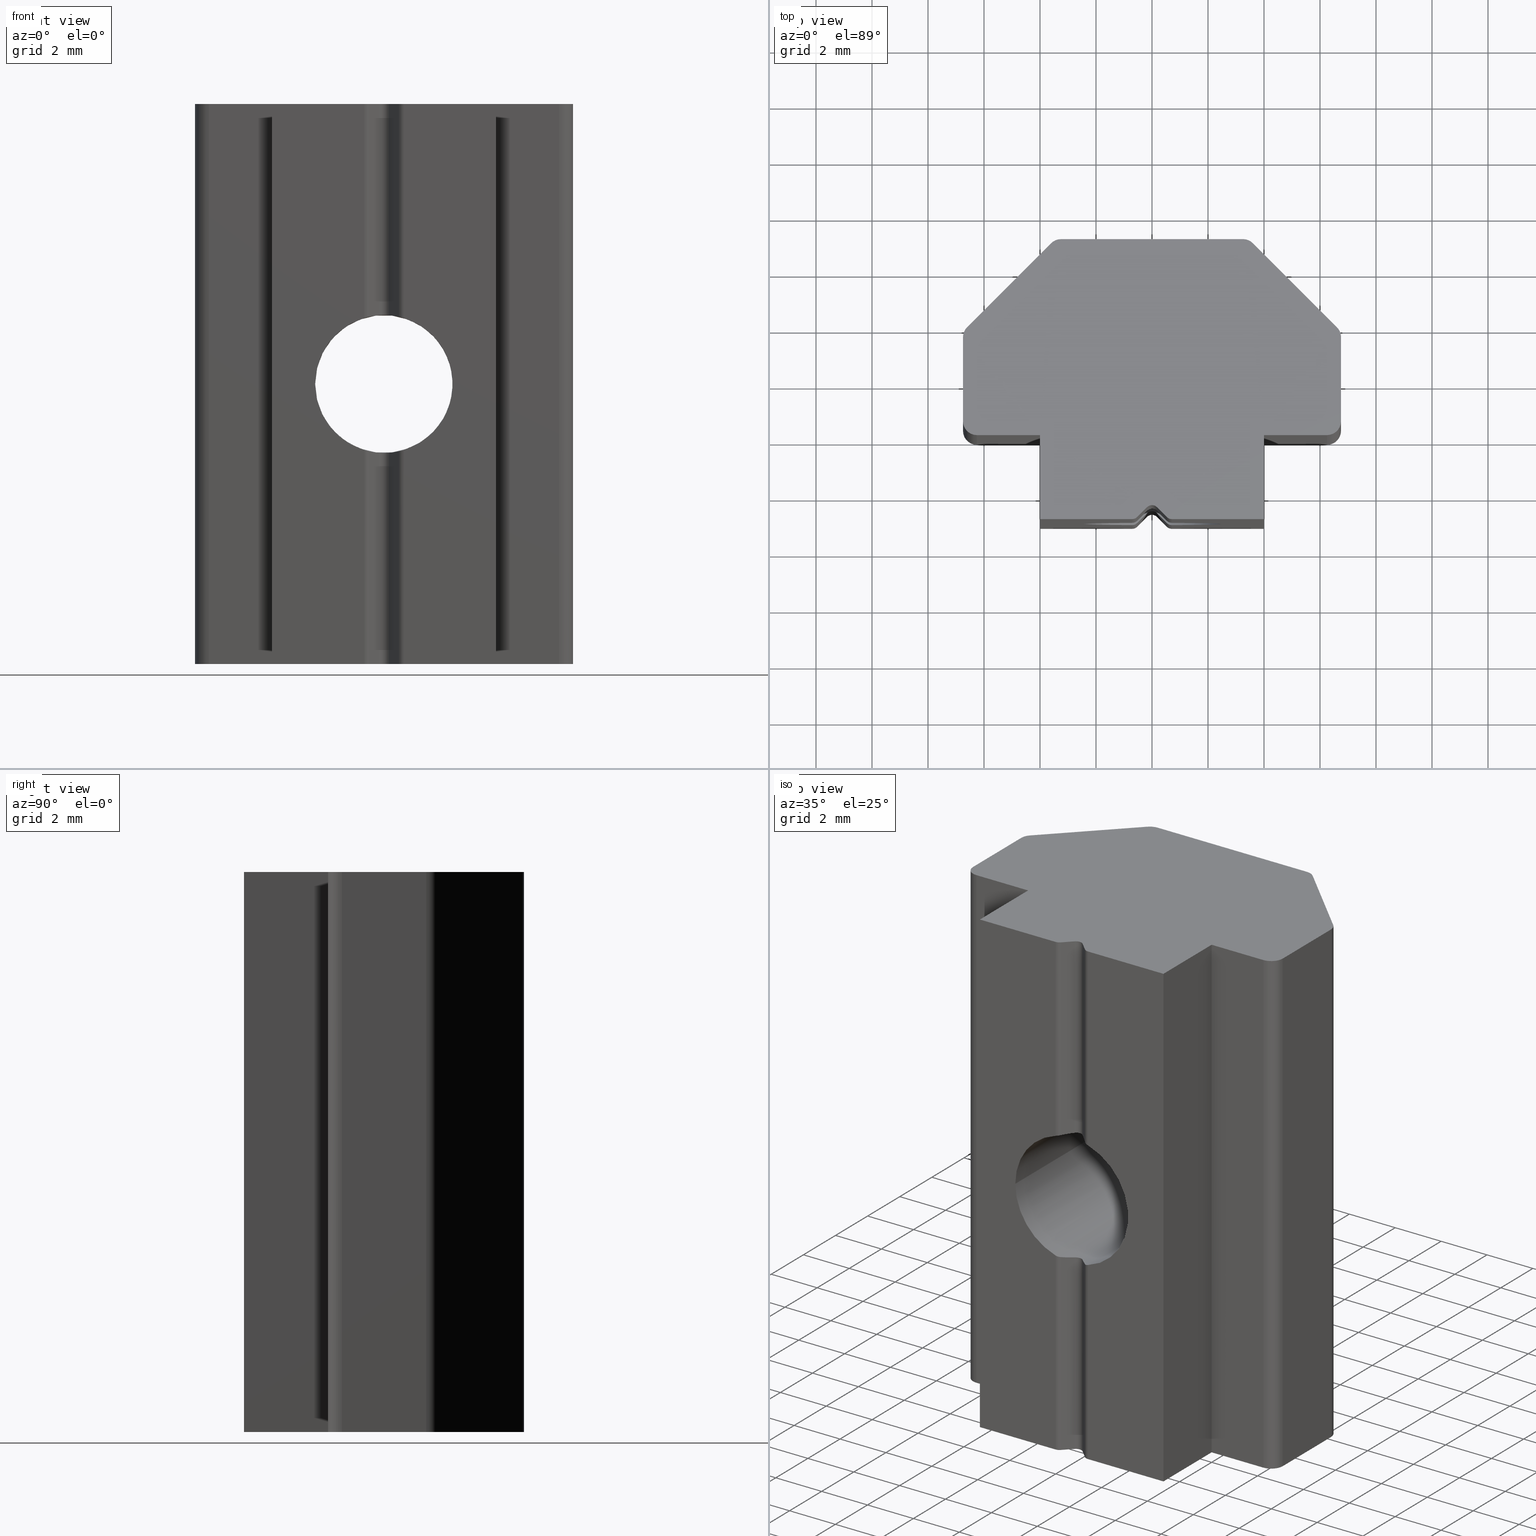
[diagram: canonical four-view strip — front | top / right | iso, engineering-drawing reading convention]
A machine part, canonical four-view strip (front | top / right | iso — engineering-drawing reading convention). The complete STEP part file that produces these views, byte-faithful:
ISO-10303-21;
HEADER;
/* Generated by software containing ST-Developer
 * from STEP Tools, Inc. (www.steptools.com) 
 */

FILE_DESCRIPTION(
/* description */ ('CURSORE M6 13.5x20 CAVA8 '),
/* implementation_level */ '2;1');

FILE_NAME(
/* name */ 
'Q:\\Catalogo\\2_Accessori Dierre\\Per Download Web e catalogo cartace
o\\CATALOGO ELEMENTI ASSEMBLAGGIO\\PAGINA 13\\DDDCU0000098.stp',
/* time_stamp */ '2019-10-28T18:36:26+01:00',
/* author */ ('fzagni'),
/* organization */ (''),
/* preprocessor_version */ 'ST-DEVELOPER v17.2',
/* originating_system */ 'Autodesk Inventor 2019',
/* authorisation */ '');

FILE_SCHEMA (('AUTOMOTIVE_DESIGN { 1 0 10303 214 3 1 1 }'));
ENDSEC;

DATA;
#10=MECHANICAL_DESIGN_GEOMETRIC_PRESENTATION_REPRESENTATION('',(#13),#1070);
#11=SHAPE_REPRESENTATION_RELATIONSHIP('SRR','None',#1077,#12);
#12=ADVANCED_BREP_SHAPE_REPRESENTATION('',(#14),#1069);
#13=STYLED_ITEM('',(#1086),#14);
#14=MANIFOLD_SOLID_BREP('Solido1',#603);
#15=FACE_BOUND('',#86,.T.);
#16=PLANE('',#635);
#17=PLANE('',#636);
#18=PLANE('',#645);
#19=PLANE('',#646);
#20=PLANE('',#649);
#21=PLANE('',#650);
#22=PLANE('',#651);
#23=PLANE('',#658);
#24=PLANE('',#659);
#25=PLANE('',#660);
#26=PLANE('',#663);
#27=PLANE('',#666);
#28=PLANE('',#669);
#29=PLANE('',#672);
#30=PLANE('',#675);
#31=PLANE('',#678);
#32=PLANE('',#679);
#33=FACE_OUTER_BOUND('',#63,.T.);
#34=FACE_OUTER_BOUND('',#64,.T.);
#35=FACE_OUTER_BOUND('',#65,.T.);
#36=FACE_OUTER_BOUND('',#66,.T.);
#37=FACE_OUTER_BOUND('',#67,.T.);
#38=FACE_OUTER_BOUND('',#68,.T.);
#39=FACE_OUTER_BOUND('',#69,.T.);
#40=FACE_OUTER_BOUND('',#70,.T.);
#41=FACE_OUTER_BOUND('',#71,.T.);
#42=FACE_OUTER_BOUND('',#72,.T.);
#43=FACE_OUTER_BOUND('',#73,.T.);
#44=FACE_OUTER_BOUND('',#74,.T.);
#45=FACE_OUTER_BOUND('',#75,.T.);
#46=FACE_OUTER_BOUND('',#76,.T.);
#47=FACE_OUTER_BOUND('',#77,.T.);
#48=FACE_OUTER_BOUND('',#78,.T.);
#49=FACE_OUTER_BOUND('',#79,.T.);
#50=FACE_OUTER_BOUND('',#80,.T.);
#51=FACE_OUTER_BOUND('',#81,.T.);
#52=FACE_OUTER_BOUND('',#82,.T.);
#53=FACE_OUTER_BOUND('',#83,.T.);
#54=FACE_OUTER_BOUND('',#84,.T.);
#55=FACE_OUTER_BOUND('',#85,.T.);
#56=FACE_OUTER_BOUND('',#87,.T.);
#57=FACE_OUTER_BOUND('',#88,.T.);
#58=FACE_OUTER_BOUND('',#89,.T.);
#59=FACE_OUTER_BOUND('',#90,.T.);
#60=FACE_OUTER_BOUND('',#91,.T.);
#61=FACE_OUTER_BOUND('',#92,.T.);
#62=FACE_OUTER_BOUND('',#93,.T.);
#63=EDGE_LOOP('',(#384,#385,#386,#387,#388,#389,#390,#391,#392,#393,#394,
#395,#396,#397,#398,#399,#400));
#64=EDGE_LOOP('',(#401,#402,#403,#404));
#65=EDGE_LOOP('',(#405,#406,#407,#408,#409,#410));
#66=EDGE_LOOP('',(#411,#412,#413,#414));
#67=EDGE_LOOP('',(#415,#416,#417,#418));
#68=EDGE_LOOP('',(#419,#420,#421,#422));
#69=EDGE_LOOP('',(#423,#424,#425,#426));
#70=EDGE_LOOP('',(#427,#428,#429,#430));
#71=EDGE_LOOP('',(#431,#432,#433,#434));
#72=EDGE_LOOP('',(#435,#436,#437,#438));
#73=EDGE_LOOP('',(#439,#440,#441,#442));
#74=EDGE_LOOP('',(#443,#444,#445,#446));
#75=EDGE_LOOP('',(#447,#448,#449,#450,#451,#452,#453));
#76=EDGE_LOOP('',(#454,#455,#456,#457,#458,#459,#460,#461,#462,#463,#464,
#465,#466,#467,#468,#469,#470,#471,#472,#473,#474,#475));
#77=EDGE_LOOP('',(#476,#477,#478,#479));
#78=EDGE_LOOP('',(#480,#481,#482,#483));
#79=EDGE_LOOP('',(#484,#485,#486,#487));
#80=EDGE_LOOP('',(#488,#489,#490,#491));
#81=EDGE_LOOP('',(#492,#493,#494,#495));
#82=EDGE_LOOP('',(#496,#497,#498,#499));
#83=EDGE_LOOP('',(#500,#501,#502,#503));
#84=EDGE_LOOP('',(#504,#505,#506,#507));
#85=EDGE_LOOP('',(#508,#509,#510,#511));
#86=EDGE_LOOP('',(#512,#513));
#87=EDGE_LOOP('',(#514,#515,#516,#517));
#88=EDGE_LOOP('',(#518,#519,#520,#521));
#89=EDGE_LOOP('',(#522,#523,#524,#525));
#90=EDGE_LOOP('',(#526,#527,#528,#529));
#91=EDGE_LOOP('',(#530,#531,#532,#533));
#92=EDGE_LOOP('',(#534,#535,#536,#537));
#93=EDGE_LOOP('',(#538,#539,#540,#541,#542,#543,#544,#545,#546,#547,#548,
#549,#550,#551,#552,#553,#554,#555,#556,#557,#558,#559));
#94=ELLIPSE('',#627,3.47684404309426,2.4585);
#95=ELLIPSE('',#628,3.47684404309426,2.4585);
#96=ELLIPSE('',#630,3.47684404309426,2.4585);
#97=ELLIPSE('',#631,3.47684404309426,2.4585);
#98=B_SPLINE_CURVE_WITH_KNOTS('',3,(#862,#863,#864,#865,#866,#867),
 .UNSPECIFIED.,.F.,.F.,(4,2,4),(0.0189204678367977,0.0285275095447883,0.0382712235857992),
 .UNSPECIFIED.);
#99=B_SPLINE_CURVE_WITH_KNOTS('',3,(#871,#872,#873,#874,#875,#876,#877,
#878,#879,#880),.UNSPECIFIED.,.F.,.F.,(4,2,2,2,4),(0.0188483560750807,0.0282724998026584,
0.037696643530236,0.0471207872578136,0.0565449309853912),.UNSPECIFIED.);
#100=B_SPLINE_CURVE_WITH_KNOTS('',3,(#884,#885,#886,#887,#888,#889),
 .UNSPECIFIED.,.F.,.F.,(4,2,4),(0.0388214432074334,0.0485651572484443,0.0581721989564349),
 .UNSPECIFIED.);
#101=B_SPLINE_CURVE_WITH_KNOTS('',3,(#893,#894,#895,#896,#897,#898),
 .UNSPECIFIED.,.F.,.F.,(4,2,4),(0.0960131876847319,0.105620229392723,0.115363943433733),
 .UNSPECIFIED.);
#102=B_SPLINE_CURVE_WITH_KNOTS('',3,(#902,#903,#904,#905,#906,#907,#908,
#909,#910,#911),.UNSPECIFIED.,.F.,.F.,(4,2,2,2,4),(0.0942416431355526,0.10366578686313,
0.113089930590708,0.122514074318285,0.131938218045863),.UNSPECIFIED.);
#103=B_SPLINE_CURVE_WITH_KNOTS('',3,(#915,#916,#917,#918,#919,#920),
 .UNSPECIFIED.,.F.,.F.,(4,2,4),(0.115915169619862,0.125658883660873,0.135265925368863),
 .UNSPECIFIED.);
#104=LINE('',#858,#159);
#105=LINE('',#924,#160);
#106=LINE('',#927,#161);
#107=LINE('',#930,#162);
#108=LINE('',#932,#163);
#109=LINE('',#934,#164);
#110=LINE('',#936,#165);
#111=LINE('',#937,#166);
#112=LINE('',#940,#167);
#113=LINE('',#941,#168);
#114=LINE('',#945,#169);
#115=LINE('',#948,#170);
#116=LINE('',#951,#171);
#117=LINE('',#954,#172);
#118=LINE('',#959,#173);
#119=LINE('',#961,#174);
#120=LINE('',#963,#175);
#121=LINE('',#966,#176);
#122=LINE('',#969,#177);
#123=LINE('',#971,#178);
#124=LINE('',#974,#179);
#125=LINE('',#976,#180);
#126=LINE('',#977,#181);
#127=LINE('',#980,#182);
#128=LINE('',#982,#183);
#129=LINE('',#986,#184);
#130=LINE('',#990,#185);
#131=LINE('',#994,#186);
#132=LINE('',#998,#187);
#133=LINE('',#1002,#188);
#134=LINE('',#1006,#189);
#135=LINE('',#1007,#190);
#136=LINE('',#1010,#191);
#137=LINE('',#1011,#192);
#138=LINE('',#1014,#193);
#139=LINE('',#1015,#194);
#140=LINE('',#1018,#195);
#141=LINE('',#1019,#196);
#142=LINE('',#1023,#197);
#143=LINE('',#1026,#198);
#144=LINE('',#1027,#199);
#145=LINE('',#1031,#200);
#146=LINE('',#1034,#201);
#147=LINE('',#1035,#202);
#148=LINE('',#1039,#203);
#149=LINE('',#1042,#204);
#150=LINE('',#1043,#205);
#151=LINE('',#1047,#206);
#152=LINE('',#1050,#207);
#153=LINE('',#1051,#208);
#154=LINE('',#1055,#209);
#155=LINE('',#1058,#210);
#156=LINE('',#1059,#211);
#157=LINE('',#1063,#212);
#158=LINE('',#1065,#213);
#159=VECTOR('',#688,2.4585);
#160=VECTOR('',#705,10.);
#161=VECTOR('',#708,10.);
#162=VECTOR('',#711,10.);
#163=VECTOR('',#712,10.);
#164=VECTOR('',#713,10.);
#165=VECTOR('',#714,10.);
#166=VECTOR('',#715,10.);
#167=VECTOR('',#718,10.);
#168=VECTOR('',#719,10.);
#169=VECTOR('',#724,10.);
#170=VECTOR('',#727,10.);
#171=VECTOR('',#730,10.);
#172=VECTOR('',#733,10.);
#173=VECTOR('',#740,10.);
#174=VECTOR('',#743,10.);
#175=VECTOR('',#746,10.);
#176=VECTOR('',#749,10.);
#177=VECTOR('',#752,10.);
#178=VECTOR('',#755,10.);
#179=VECTOR('',#758,10.);
#180=VECTOR('',#759,10.);
#181=VECTOR('',#760,10.);
#182=VECTOR('',#763,10.);
#183=VECTOR('',#764,10.);
#184=VECTOR('',#767,10.);
#185=VECTOR('',#770,10.);
#186=VECTOR('',#773,10.);
#187=VECTOR('',#776,10.);
#188=VECTOR('',#779,10.);
#189=VECTOR('',#782,10.);
#190=VECTOR('',#783,10.);
#191=VECTOR('',#786,10.);
#192=VECTOR('',#787,10.);
#193=VECTOR('',#790,10.);
#194=VECTOR('',#791,10.);
#195=VECTOR('',#794,10.);
#196=VECTOR('',#795,10.);
#197=VECTOR('',#800,10.);
#198=VECTOR('',#803,10.);
#199=VECTOR('',#804,10.);
#200=VECTOR('',#809,10.);
#201=VECTOR('',#812,10.);
#202=VECTOR('',#813,10.);
#203=VECTOR('',#818,10.);
#204=VECTOR('',#821,10.);
#205=VECTOR('',#822,10.);
#206=VECTOR('',#827,10.);
#207=VECTOR('',#830,10.);
#208=VECTOR('',#831,10.);
#209=VECTOR('',#836,10.);
#210=VECTOR('',#839,10.);
#211=VECTOR('',#840,10.);
#212=VECTOR('',#845,10.);
#213=VECTOR('',#848,10.);
#214=CIRCLE('',#624,2.4585);
#215=CIRCLE('',#625,2.4585);
#216=CIRCLE('',#626,2.4585);
#217=CIRCLE('',#629,2.4585);
#218=CIRCLE('',#632,2.4585);
#219=CIRCLE('',#634,0.25);
#220=CIRCLE('',#638,0.25);
#221=CIRCLE('',#640,0.25);
#222=CIRCLE('',#642,0.249999999999999);
#223=CIRCLE('',#644,0.249999999999999);
#224=CIRCLE('',#648,0.25);
#225=CIRCLE('',#652,0.499999999999999);
#226=CIRCLE('',#653,0.500000000000005);
#227=CIRCLE('',#654,0.499999999999994);
#228=CIRCLE('',#655,0.5);
#229=CIRCLE('',#656,0.500000000000001);
#230=CIRCLE('',#657,0.499999999999999);
#231=CIRCLE('',#662,0.499999999999999);
#232=CIRCLE('',#665,0.500000000000005);
#233=CIRCLE('',#668,0.499999999999994);
#234=CIRCLE('',#671,0.5);
#235=CIRCLE('',#674,0.500000000000001);
#236=CIRCLE('',#677,0.499999999999999);
#237=VERTEX_POINT('',#853);
#238=VERTEX_POINT('',#854);
#239=VERTEX_POINT('',#857);
#240=VERTEX_POINT('',#859);
#241=VERTEX_POINT('',#861);
#242=VERTEX_POINT('',#868);
#243=VERTEX_POINT('',#870);
#244=VERTEX_POINT('',#881);
#245=VERTEX_POINT('',#883);
#246=VERTEX_POINT('',#890);
#247=VERTEX_POINT('',#892);
#248=VERTEX_POINT('',#899);
#249=VERTEX_POINT('',#901);
#250=VERTEX_POINT('',#912);
#251=VERTEX_POINT('',#914);
#252=VERTEX_POINT('',#923);
#253=VERTEX_POINT('',#925);
#254=VERTEX_POINT('',#929);
#255=VERTEX_POINT('',#931);
#256=VERTEX_POINT('',#933);
#257=VERTEX_POINT('',#935);
#258=VERTEX_POINT('',#939);
#259=VERTEX_POINT('',#943);
#260=VERTEX_POINT('',#947);
#261=VERTEX_POINT('',#949);
#262=VERTEX_POINT('',#953);
#263=VERTEX_POINT('',#957);
#264=VERTEX_POINT('',#965);
#265=VERTEX_POINT('',#967);
#266=VERTEX_POINT('',#973);
#267=VERTEX_POINT('',#975);
#268=VERTEX_POINT('',#979);
#269=VERTEX_POINT('',#981);
#270=VERTEX_POINT('',#983);
#271=VERTEX_POINT('',#985);
#272=VERTEX_POINT('',#987);
#273=VERTEX_POINT('',#989);
#274=VERTEX_POINT('',#991);
#275=VERTEX_POINT('',#993);
#276=VERTEX_POINT('',#995);
#277=VERTEX_POINT('',#997);
#278=VERTEX_POINT('',#999);
#279=VERTEX_POINT('',#1001);
#280=VERTEX_POINT('',#1003);
#281=VERTEX_POINT('',#1005);
#282=VERTEX_POINT('',#1009);
#283=VERTEX_POINT('',#1013);
#284=VERTEX_POINT('',#1017);
#285=VERTEX_POINT('',#1021);
#286=VERTEX_POINT('',#1025);
#287=VERTEX_POINT('',#1029);
#288=VERTEX_POINT('',#1033);
#289=VERTEX_POINT('',#1037);
#290=VERTEX_POINT('',#1041);
#291=VERTEX_POINT('',#1045);
#292=VERTEX_POINT('',#1049);
#293=VERTEX_POINT('',#1053);
#294=VERTEX_POINT('',#1057);
#295=VERTEX_POINT('',#1061);
#296=EDGE_CURVE('',#237,#238,#214,.T.);
#297=EDGE_CURVE('',#238,#237,#215,.T.);
#298=EDGE_CURVE('',#238,#239,#104,.T.);
#299=EDGE_CURVE('',#240,#239,#216,.T.);
#300=EDGE_CURVE('',#241,#240,#98,.T.);
#301=EDGE_CURVE('',#242,#241,#94,.T.);
#302=EDGE_CURVE('',#243,#242,#99,.T.);
#303=EDGE_CURVE('',#244,#243,#95,.T.);
#304=EDGE_CURVE('',#245,#244,#100,.T.);
#305=EDGE_CURVE('',#246,#245,#217,.T.);
#306=EDGE_CURVE('',#247,#246,#101,.T.);
#307=EDGE_CURVE('',#248,#247,#96,.T.);
#308=EDGE_CURVE('',#249,#248,#102,.T.);
#309=EDGE_CURVE('',#250,#249,#97,.T.);
#310=EDGE_CURVE('',#251,#250,#103,.T.);
#311=EDGE_CURVE('',#239,#251,#218,.T.);
#312=EDGE_CURVE('',#240,#252,#105,.T.);
#313=EDGE_CURVE('',#253,#252,#219,.T.);
#314=EDGE_CURVE('',#253,#241,#106,.T.);
#315=EDGE_CURVE('',#245,#254,#107,.T.);
#316=EDGE_CURVE('',#255,#254,#108,.T.);
#317=EDGE_CURVE('',#255,#256,#109,.T.);
#318=EDGE_CURVE('',#257,#256,#110,.T.);
#319=EDGE_CURVE('',#257,#246,#111,.T.);
#320=EDGE_CURVE('',#258,#253,#112,.T.);
#321=EDGE_CURVE('',#258,#242,#113,.T.);
#322=EDGE_CURVE('',#259,#258,#220,.T.);
#323=EDGE_CURVE('',#259,#243,#114,.T.);
#324=EDGE_CURVE('',#248,#260,#115,.T.);
#325=EDGE_CURVE('',#261,#260,#221,.T.);
#326=EDGE_CURVE('',#249,#261,#116,.T.);
#327=EDGE_CURVE('',#262,#244,#117,.T.);
#328=EDGE_CURVE('',#254,#262,#222,.T.);
#329=EDGE_CURVE('',#263,#257,#223,.T.);
#330=EDGE_CURVE('',#247,#263,#118,.T.);
#331=EDGE_CURVE('',#262,#259,#119,.T.);
#332=EDGE_CURVE('',#260,#263,#120,.T.);
#333=EDGE_CURVE('',#250,#264,#121,.T.);
#334=EDGE_CURVE('',#265,#264,#224,.T.);
#335=EDGE_CURVE('',#265,#251,#122,.T.);
#336=EDGE_CURVE('',#264,#261,#123,.T.);
#337=EDGE_CURVE('',#266,#265,#124,.T.);
#338=EDGE_CURVE('',#267,#266,#125,.T.);
#339=EDGE_CURVE('',#252,#267,#126,.T.);
#340=EDGE_CURVE('',#267,#268,#127,.T.);
#341=EDGE_CURVE('',#268,#269,#128,.T.);
#342=EDGE_CURVE('',#269,#270,#225,.T.);
#343=EDGE_CURVE('',#270,#271,#129,.T.);
#344=EDGE_CURVE('',#271,#272,#226,.T.);
#345=EDGE_CURVE('',#272,#273,#130,.T.);
#346=EDGE_CURVE('',#273,#274,#227,.T.);
#347=EDGE_CURVE('',#274,#275,#131,.T.);
#348=EDGE_CURVE('',#275,#276,#228,.T.);
#349=EDGE_CURVE('',#276,#277,#132,.T.);
#350=EDGE_CURVE('',#277,#278,#229,.T.);
#351=EDGE_CURVE('',#278,#279,#133,.T.);
#352=EDGE_CURVE('',#279,#280,#230,.T.);
#353=EDGE_CURVE('',#280,#281,#134,.T.);
#354=EDGE_CURVE('',#281,#255,#135,.T.);
#355=EDGE_CURVE('',#282,#281,#136,.T.);
#356=EDGE_CURVE('',#256,#282,#137,.T.);
#357=EDGE_CURVE('',#283,#266,#138,.T.);
#358=EDGE_CURVE('',#268,#283,#139,.T.);
#359=EDGE_CURVE('',#284,#283,#140,.T.);
#360=EDGE_CURVE('',#269,#284,#141,.T.);
#361=EDGE_CURVE('',#285,#284,#231,.T.);
#362=EDGE_CURVE('',#270,#285,#142,.T.);
#363=EDGE_CURVE('',#286,#285,#143,.T.);
#364=EDGE_CURVE('',#271,#286,#144,.T.);
#365=EDGE_CURVE('',#287,#286,#232,.T.);
#366=EDGE_CURVE('',#272,#287,#145,.T.);
#367=EDGE_CURVE('',#288,#287,#146,.T.);
#368=EDGE_CURVE('',#273,#288,#147,.T.);
#369=EDGE_CURVE('',#289,#288,#233,.T.);
#370=EDGE_CURVE('',#274,#289,#148,.T.);
#371=EDGE_CURVE('',#290,#289,#149,.T.);
#372=EDGE_CURVE('',#275,#290,#150,.T.);
#373=EDGE_CURVE('',#291,#290,#234,.T.);
#374=EDGE_CURVE('',#276,#291,#151,.T.);
#375=EDGE_CURVE('',#292,#291,#152,.T.);
#376=EDGE_CURVE('',#277,#292,#153,.T.);
#377=EDGE_CURVE('',#293,#292,#235,.T.);
#378=EDGE_CURVE('',#278,#293,#154,.T.);
#379=EDGE_CURVE('',#294,#293,#155,.T.);
#380=EDGE_CURVE('',#279,#294,#156,.T.);
#381=EDGE_CURVE('',#295,#294,#236,.T.);
#382=EDGE_CURVE('',#280,#295,#157,.T.);
#383=EDGE_CURVE('',#282,#295,#158,.T.);
#384=ORIENTED_EDGE('',*,*,#296,.F.);
#385=ORIENTED_EDGE('',*,*,#297,.F.);
#386=ORIENTED_EDGE('',*,*,#298,.T.);
#387=ORIENTED_EDGE('',*,*,#299,.F.);
#388=ORIENTED_EDGE('',*,*,#300,.F.);
#389=ORIENTED_EDGE('',*,*,#301,.F.);
#390=ORIENTED_EDGE('',*,*,#302,.F.);
#391=ORIENTED_EDGE('',*,*,#303,.F.);
#392=ORIENTED_EDGE('',*,*,#304,.F.);
#393=ORIENTED_EDGE('',*,*,#305,.F.);
#394=ORIENTED_EDGE('',*,*,#306,.F.);
#395=ORIENTED_EDGE('',*,*,#307,.F.);
#396=ORIENTED_EDGE('',*,*,#308,.F.);
#397=ORIENTED_EDGE('',*,*,#309,.F.);
#398=ORIENTED_EDGE('',*,*,#310,.F.);
#399=ORIENTED_EDGE('',*,*,#311,.F.);
#400=ORIENTED_EDGE('',*,*,#298,.F.);
#401=ORIENTED_EDGE('',*,*,#300,.T.);
#402=ORIENTED_EDGE('',*,*,#312,.T.);
#403=ORIENTED_EDGE('',*,*,#313,.F.);
#404=ORIENTED_EDGE('',*,*,#314,.T.);
#405=ORIENTED_EDGE('',*,*,#305,.T.);
#406=ORIENTED_EDGE('',*,*,#315,.T.);
#407=ORIENTED_EDGE('',*,*,#316,.F.);
#408=ORIENTED_EDGE('',*,*,#317,.T.);
#409=ORIENTED_EDGE('',*,*,#318,.F.);
#410=ORIENTED_EDGE('',*,*,#319,.T.);
#411=ORIENTED_EDGE('',*,*,#301,.T.);
#412=ORIENTED_EDGE('',*,*,#314,.F.);
#413=ORIENTED_EDGE('',*,*,#320,.F.);
#414=ORIENTED_EDGE('',*,*,#321,.T.);
#415=ORIENTED_EDGE('',*,*,#302,.T.);
#416=ORIENTED_EDGE('',*,*,#321,.F.);
#417=ORIENTED_EDGE('',*,*,#322,.F.);
#418=ORIENTED_EDGE('',*,*,#323,.T.);
#419=ORIENTED_EDGE('',*,*,#308,.T.);
#420=ORIENTED_EDGE('',*,*,#324,.T.);
#421=ORIENTED_EDGE('',*,*,#325,.F.);
#422=ORIENTED_EDGE('',*,*,#326,.F.);
#423=ORIENTED_EDGE('',*,*,#304,.T.);
#424=ORIENTED_EDGE('',*,*,#327,.F.);
#425=ORIENTED_EDGE('',*,*,#328,.F.);
#426=ORIENTED_EDGE('',*,*,#315,.F.);
#427=ORIENTED_EDGE('',*,*,#306,.T.);
#428=ORIENTED_EDGE('',*,*,#319,.F.);
#429=ORIENTED_EDGE('',*,*,#329,.F.);
#430=ORIENTED_EDGE('',*,*,#330,.F.);
#431=ORIENTED_EDGE('',*,*,#303,.T.);
#432=ORIENTED_EDGE('',*,*,#323,.F.);
#433=ORIENTED_EDGE('',*,*,#331,.F.);
#434=ORIENTED_EDGE('',*,*,#327,.T.);
#435=ORIENTED_EDGE('',*,*,#307,.T.);
#436=ORIENTED_EDGE('',*,*,#330,.T.);
#437=ORIENTED_EDGE('',*,*,#332,.F.);
#438=ORIENTED_EDGE('',*,*,#324,.F.);
#439=ORIENTED_EDGE('',*,*,#310,.T.);
#440=ORIENTED_EDGE('',*,*,#333,.T.);
#441=ORIENTED_EDGE('',*,*,#334,.F.);
#442=ORIENTED_EDGE('',*,*,#335,.T.);
#443=ORIENTED_EDGE('',*,*,#309,.T.);
#444=ORIENTED_EDGE('',*,*,#326,.T.);
#445=ORIENTED_EDGE('',*,*,#336,.F.);
#446=ORIENTED_EDGE('',*,*,#333,.F.);
#447=ORIENTED_EDGE('',*,*,#299,.T.);
#448=ORIENTED_EDGE('',*,*,#311,.T.);
#449=ORIENTED_EDGE('',*,*,#335,.F.);
#450=ORIENTED_EDGE('',*,*,#337,.F.);
#451=ORIENTED_EDGE('',*,*,#338,.F.);
#452=ORIENTED_EDGE('',*,*,#339,.F.);
#453=ORIENTED_EDGE('',*,*,#312,.F.);
#454=ORIENTED_EDGE('',*,*,#328,.T.);
#455=ORIENTED_EDGE('',*,*,#331,.T.);
#456=ORIENTED_EDGE('',*,*,#322,.T.);
#457=ORIENTED_EDGE('',*,*,#320,.T.);
#458=ORIENTED_EDGE('',*,*,#313,.T.);
#459=ORIENTED_EDGE('',*,*,#339,.T.);
#460=ORIENTED_EDGE('',*,*,#340,.T.);
#461=ORIENTED_EDGE('',*,*,#341,.T.);
#462=ORIENTED_EDGE('',*,*,#342,.T.);
#463=ORIENTED_EDGE('',*,*,#343,.T.);
#464=ORIENTED_EDGE('',*,*,#344,.T.);
#465=ORIENTED_EDGE('',*,*,#345,.T.);
#466=ORIENTED_EDGE('',*,*,#346,.T.);
#467=ORIENTED_EDGE('',*,*,#347,.T.);
#468=ORIENTED_EDGE('',*,*,#348,.T.);
#469=ORIENTED_EDGE('',*,*,#349,.T.);
#470=ORIENTED_EDGE('',*,*,#350,.T.);
#471=ORIENTED_EDGE('',*,*,#351,.T.);
#472=ORIENTED_EDGE('',*,*,#352,.T.);
#473=ORIENTED_EDGE('',*,*,#353,.T.);
#474=ORIENTED_EDGE('',*,*,#354,.T.);
#475=ORIENTED_EDGE('',*,*,#316,.T.);
#476=ORIENTED_EDGE('',*,*,#355,.F.);
#477=ORIENTED_EDGE('',*,*,#356,.F.);
#478=ORIENTED_EDGE('',*,*,#317,.F.);
#479=ORIENTED_EDGE('',*,*,#354,.F.);
#480=ORIENTED_EDGE('',*,*,#338,.T.);
#481=ORIENTED_EDGE('',*,*,#357,.F.);
#482=ORIENTED_EDGE('',*,*,#358,.F.);
#483=ORIENTED_EDGE('',*,*,#340,.F.);
#484=ORIENTED_EDGE('',*,*,#358,.T.);
#485=ORIENTED_EDGE('',*,*,#359,.F.);
#486=ORIENTED_EDGE('',*,*,#360,.F.);
#487=ORIENTED_EDGE('',*,*,#341,.F.);
#488=ORIENTED_EDGE('',*,*,#360,.T.);
#489=ORIENTED_EDGE('',*,*,#361,.F.);
#490=ORIENTED_EDGE('',*,*,#362,.F.);
#491=ORIENTED_EDGE('',*,*,#342,.F.);
#492=ORIENTED_EDGE('',*,*,#362,.T.);
#493=ORIENTED_EDGE('',*,*,#363,.F.);
#494=ORIENTED_EDGE('',*,*,#364,.F.);
#495=ORIENTED_EDGE('',*,*,#343,.F.);
#496=ORIENTED_EDGE('',*,*,#364,.T.);
#497=ORIENTED_EDGE('',*,*,#365,.F.);
#498=ORIENTED_EDGE('',*,*,#366,.F.);
#499=ORIENTED_EDGE('',*,*,#344,.F.);
#500=ORIENTED_EDGE('',*,*,#366,.T.);
#501=ORIENTED_EDGE('',*,*,#367,.F.);
#502=ORIENTED_EDGE('',*,*,#368,.F.);
#503=ORIENTED_EDGE('',*,*,#345,.F.);
#504=ORIENTED_EDGE('',*,*,#368,.T.);
#505=ORIENTED_EDGE('',*,*,#369,.F.);
#506=ORIENTED_EDGE('',*,*,#370,.F.);
#507=ORIENTED_EDGE('',*,*,#346,.F.);
#508=ORIENTED_EDGE('',*,*,#370,.T.);
#509=ORIENTED_EDGE('',*,*,#371,.F.);
#510=ORIENTED_EDGE('',*,*,#372,.F.);
#511=ORIENTED_EDGE('',*,*,#347,.F.);
#512=ORIENTED_EDGE('',*,*,#296,.T.);
#513=ORIENTED_EDGE('',*,*,#297,.T.);
#514=ORIENTED_EDGE('',*,*,#372,.T.);
#515=ORIENTED_EDGE('',*,*,#373,.F.);
#516=ORIENTED_EDGE('',*,*,#374,.F.);
#517=ORIENTED_EDGE('',*,*,#348,.F.);
#518=ORIENTED_EDGE('',*,*,#374,.T.);
#519=ORIENTED_EDGE('',*,*,#375,.F.);
#520=ORIENTED_EDGE('',*,*,#376,.F.);
#521=ORIENTED_EDGE('',*,*,#349,.F.);
#522=ORIENTED_EDGE('',*,*,#376,.T.);
#523=ORIENTED_EDGE('',*,*,#377,.F.);
#524=ORIENTED_EDGE('',*,*,#378,.F.);
#525=ORIENTED_EDGE('',*,*,#350,.F.);
#526=ORIENTED_EDGE('',*,*,#378,.T.);
#527=ORIENTED_EDGE('',*,*,#379,.F.);
#528=ORIENTED_EDGE('',*,*,#380,.F.);
#529=ORIENTED_EDGE('',*,*,#351,.F.);
#530=ORIENTED_EDGE('',*,*,#380,.T.);
#531=ORIENTED_EDGE('',*,*,#381,.F.);
#532=ORIENTED_EDGE('',*,*,#382,.F.);
#533=ORIENTED_EDGE('',*,*,#352,.F.);
#534=ORIENTED_EDGE('',*,*,#382,.T.);
#535=ORIENTED_EDGE('',*,*,#383,.F.);
#536=ORIENTED_EDGE('',*,*,#355,.T.);
#537=ORIENTED_EDGE('',*,*,#353,.F.);
#538=ORIENTED_EDGE('',*,*,#329,.T.);
#539=ORIENTED_EDGE('',*,*,#318,.T.);
#540=ORIENTED_EDGE('',*,*,#356,.T.);
#541=ORIENTED_EDGE('',*,*,#383,.T.);
#542=ORIENTED_EDGE('',*,*,#381,.T.);
#543=ORIENTED_EDGE('',*,*,#379,.T.);
#544=ORIENTED_EDGE('',*,*,#377,.T.);
#545=ORIENTED_EDGE('',*,*,#375,.T.);
#546=ORIENTED_EDGE('',*,*,#373,.T.);
#547=ORIENTED_EDGE('',*,*,#371,.T.);
#548=ORIENTED_EDGE('',*,*,#369,.T.);
#549=ORIENTED_EDGE('',*,*,#367,.T.);
#550=ORIENTED_EDGE('',*,*,#365,.T.);
#551=ORIENTED_EDGE('',*,*,#363,.T.);
#552=ORIENTED_EDGE('',*,*,#361,.T.);
#553=ORIENTED_EDGE('',*,*,#359,.T.);
#554=ORIENTED_EDGE('',*,*,#357,.T.);
#555=ORIENTED_EDGE('',*,*,#337,.T.);
#556=ORIENTED_EDGE('',*,*,#334,.T.);
#557=ORIENTED_EDGE('',*,*,#336,.T.);
#558=ORIENTED_EDGE('',*,*,#325,.T.);
#559=ORIENTED_EDGE('',*,*,#332,.T.);
#560=CYLINDRICAL_SURFACE('',#623,2.4585);
#561=CYLINDRICAL_SURFACE('',#633,0.25);
#562=CYLINDRICAL_SURFACE('',#637,0.25);
#563=CYLINDRICAL_SURFACE('',#639,0.25);
#564=CYLINDRICAL_SURFACE('',#641,0.249999999999999);
#565=CYLINDRICAL_SURFACE('',#643,0.249999999999999);
#566=CYLINDRICAL_SURFACE('',#647,0.25);
#567=CYLINDRICAL_SURFACE('',#661,0.499999999999999);
#568=CYLINDRICAL_SURFACE('',#664,0.500000000000005);
#569=CYLINDRICAL_SURFACE('',#667,0.499999999999994);
#570=CYLINDRICAL_SURFACE('',#670,0.5);
#571=CYLINDRICAL_SURFACE('',#673,0.500000000000001);
#572=CYLINDRICAL_SURFACE('',#676,0.499999999999999);
#573=ADVANCED_FACE('',(#33),#560,.F.);
#574=ADVANCED_FACE('',(#34),#561,.T.);
#575=ADVANCED_FACE('',(#35),#16,.T.);
#576=ADVANCED_FACE('',(#36),#17,.F.);
#577=ADVANCED_FACE('',(#37),#562,.F.);
#578=ADVANCED_FACE('',(#38),#563,.F.);
#579=ADVANCED_FACE('',(#39),#564,.T.);
#580=ADVANCED_FACE('',(#40),#565,.T.);
#581=ADVANCED_FACE('',(#41),#18,.F.);
#582=ADVANCED_FACE('',(#42),#19,.F.);
#583=ADVANCED_FACE('',(#43),#566,.T.);
#584=ADVANCED_FACE('',(#44),#20,.F.);
#585=ADVANCED_FACE('',(#45),#21,.T.);
#586=ADVANCED_FACE('',(#46),#22,.F.);
#587=ADVANCED_FACE('',(#47),#23,.T.);
#588=ADVANCED_FACE('',(#48),#24,.T.);
#589=ADVANCED_FACE('',(#49),#25,.T.);
#590=ADVANCED_FACE('',(#50),#567,.T.);
#591=ADVANCED_FACE('',(#51),#26,.T.);
#592=ADVANCED_FACE('',(#52),#568,.T.);
#593=ADVANCED_FACE('',(#53),#27,.T.);
#594=ADVANCED_FACE('',(#54),#569,.T.);
#595=ADVANCED_FACE('',(#55,#15),#28,.T.);
#596=ADVANCED_FACE('',(#56),#570,.T.);
#597=ADVANCED_FACE('',(#57),#29,.T.);
#598=ADVANCED_FACE('',(#58),#571,.T.);
#599=ADVANCED_FACE('',(#59),#30,.T.);
#600=ADVANCED_FACE('',(#60),#572,.T.);
#601=ADVANCED_FACE('',(#61),#31,.T.);
#602=ADVANCED_FACE('',(#62),#32,.T.);
#603=CLOSED_SHELL('',(#573,#574,#575,#576,#577,#578,#579,#580,#581,#582,
#583,#584,#585,#586,#587,#588,#589,#590,#591,#592,#593,#594,#595,#596,#597,
#598,#599,#600,#601,#602));
#604=DERIVED_UNIT_ELEMENT(#606,1.);
#605=DERIVED_UNIT_ELEMENT(#1072,3.);
#606=(
MASS_UNIT()
NAMED_UNIT(*)
SI_UNIT($,.GRAM.)
);
#607=DERIVED_UNIT((#604,#605));
#608=MEASURE_REPRESENTATION_ITEM('density measure',
POSITIVE_RATIO_MEASURE(7.85),#607);
#609=PROPERTY_DEFINITION_REPRESENTATION(#614,#611);
#610=PROPERTY_DEFINITION_REPRESENTATION(#615,#612);
#611=REPRESENTATION('material name',(#613),#1069);
#612=REPRESENTATION('density',(#608),#1069);
#613=DESCRIPTIVE_REPRESENTATION_ITEM('Acciaio S235JR','Acciaio S235JR');
#614=PROPERTY_DEFINITION('material property','material name',#1079);
#615=PROPERTY_DEFINITION('material property','density of part',#1079);
#616=DATE_TIME_ROLE('creation_date');
#617=APPLIED_DATE_AND_TIME_ASSIGNMENT(#618,#616,(#1079));
#618=DATE_AND_TIME(#619,#620);
#619=CALENDAR_DATE(2019,28,10);
#620=LOCAL_TIME(17,1,7.,#621);
#621=COORDINATED_UNIVERSAL_TIME_OFFSET(0,0,.BEHIND.);
#622=AXIS2_PLACEMENT_3D('placement',#851,#680,#681);
#623=AXIS2_PLACEMENT_3D('',#852,#682,#683);
#624=AXIS2_PLACEMENT_3D('',#855,#684,#685);
#625=AXIS2_PLACEMENT_3D('',#856,#686,#687);
#626=AXIS2_PLACEMENT_3D('',#860,#689,#690);
#627=AXIS2_PLACEMENT_3D('',#869,#691,#692);
#628=AXIS2_PLACEMENT_3D('',#882,#693,#694);
#629=AXIS2_PLACEMENT_3D('',#891,#695,#696);
#630=AXIS2_PLACEMENT_3D('',#900,#697,#698);
#631=AXIS2_PLACEMENT_3D('',#913,#699,#700);
#632=AXIS2_PLACEMENT_3D('',#921,#701,#702);
#633=AXIS2_PLACEMENT_3D('',#922,#703,#704);
#634=AXIS2_PLACEMENT_3D('',#926,#706,#707);
#635=AXIS2_PLACEMENT_3D('',#928,#709,#710);
#636=AXIS2_PLACEMENT_3D('',#938,#716,#717);
#637=AXIS2_PLACEMENT_3D('',#942,#720,#721);
#638=AXIS2_PLACEMENT_3D('',#944,#722,#723);
#639=AXIS2_PLACEMENT_3D('',#946,#725,#726);
#640=AXIS2_PLACEMENT_3D('',#950,#728,#729);
#641=AXIS2_PLACEMENT_3D('',#952,#731,#732);
#642=AXIS2_PLACEMENT_3D('',#955,#734,#735);
#643=AXIS2_PLACEMENT_3D('',#956,#736,#737);
#644=AXIS2_PLACEMENT_3D('',#958,#738,#739);
#645=AXIS2_PLACEMENT_3D('',#960,#741,#742);
#646=AXIS2_PLACEMENT_3D('',#962,#744,#745);
#647=AXIS2_PLACEMENT_3D('',#964,#747,#748);
#648=AXIS2_PLACEMENT_3D('',#968,#750,#751);
#649=AXIS2_PLACEMENT_3D('',#970,#753,#754);
#650=AXIS2_PLACEMENT_3D('',#972,#756,#757);
#651=AXIS2_PLACEMENT_3D('',#978,#761,#762);
#652=AXIS2_PLACEMENT_3D('',#984,#765,#766);
#653=AXIS2_PLACEMENT_3D('',#988,#768,#769);
#654=AXIS2_PLACEMENT_3D('',#992,#771,#772);
#655=AXIS2_PLACEMENT_3D('',#996,#774,#775);
#656=AXIS2_PLACEMENT_3D('',#1000,#777,#778);
#657=AXIS2_PLACEMENT_3D('',#1004,#780,#781);
#658=AXIS2_PLACEMENT_3D('',#1008,#784,#785);
#659=AXIS2_PLACEMENT_3D('',#1012,#788,#789);
#660=AXIS2_PLACEMENT_3D('',#1016,#792,#793);
#661=AXIS2_PLACEMENT_3D('',#1020,#796,#797);
#662=AXIS2_PLACEMENT_3D('',#1022,#798,#799);
#663=AXIS2_PLACEMENT_3D('',#1024,#801,#802);
#664=AXIS2_PLACEMENT_3D('',#1028,#805,#806);
#665=AXIS2_PLACEMENT_3D('',#1030,#807,#808);
#666=AXIS2_PLACEMENT_3D('',#1032,#810,#811);
#667=AXIS2_PLACEMENT_3D('',#1036,#814,#815);
#668=AXIS2_PLACEMENT_3D('',#1038,#816,#817);
#669=AXIS2_PLACEMENT_3D('',#1040,#819,#820);
#670=AXIS2_PLACEMENT_3D('',#1044,#823,#824);
#671=AXIS2_PLACEMENT_3D('',#1046,#825,#826);
#672=AXIS2_PLACEMENT_3D('',#1048,#828,#829);
#673=AXIS2_PLACEMENT_3D('',#1052,#832,#833);
#674=AXIS2_PLACEMENT_3D('',#1054,#834,#835);
#675=AXIS2_PLACEMENT_3D('',#1056,#837,#838);
#676=AXIS2_PLACEMENT_3D('',#1060,#841,#842);
#677=AXIS2_PLACEMENT_3D('',#1062,#843,#844);
#678=AXIS2_PLACEMENT_3D('',#1064,#846,#847);
#679=AXIS2_PLACEMENT_3D('',#1066,#849,#850);
#680=DIRECTION('axis',(0.,0.,1.));
#681=DIRECTION('refdir',(1.,0.,0.));
#682=DIRECTION('center_axis',(0.,1.,0.));
#683=DIRECTION('ref_axis',(1.,0.,0.));
#684=DIRECTION('center_axis',(0.,-1.,0.));
#685=DIRECTION('ref_axis',(1.,0.,0.));
#686=DIRECTION('center_axis',(0.,-1.,0.));
#687=DIRECTION('ref_axis',(1.,0.,0.));
#688=DIRECTION('',(0.,-1.,0.));
#689=DIRECTION('center_axis',(0.,1.,0.));
#690=DIRECTION('ref_axis',(1.,0.,0.));
#691=DIRECTION('center_axis',(-0.707106781186548,0.707106781186547,0.));
#692=DIRECTION('ref_axis',(0.707106781186547,0.707106781186548,0.));
#693=DIRECTION('center_axis',(0.70710678118655,0.707106781186546,0.));
#694=DIRECTION('ref_axis',(0.707106781186545,-0.70710678118655,0.));
#695=DIRECTION('center_axis',(0.,1.,0.));
#696=DIRECTION('ref_axis',(1.,0.,0.));
#697=DIRECTION('center_axis',(0.70710678118655,0.707106781186546,0.));
#698=DIRECTION('ref_axis',(0.707106781186545,-0.70710678118655,0.));
#699=DIRECTION('center_axis',(-0.707106781186548,0.707106781186547,0.));
#700=DIRECTION('ref_axis',(0.707106781186547,0.707106781186548,0.));
#701=DIRECTION('center_axis',(0.,1.,0.));
#702=DIRECTION('ref_axis',(1.,0.,0.));
#703=DIRECTION('center_axis',(0.,0.,1.));
#704=DIRECTION('ref_axis',(5.55111512312579E-16,1.,0.));
#705=DIRECTION('',(0.,0.,-1.));
#706=DIRECTION('center_axis',(0.,0.,-1.));
#707=DIRECTION('ref_axis',(5.55111512312579E-16,1.,0.));
#708=DIRECTION('',(0.,0.,1.));
#709=DIRECTION('center_axis',(0.,-1.,0.));
#710=DIRECTION('ref_axis',(1.,0.,0.));
#711=DIRECTION('',(0.,0.,-1.));
#712=DIRECTION('',(-1.,0.,0.));
#713=DIRECTION('',(0.,0.,1.));
#714=DIRECTION('',(1.,0.,0.));
#715=DIRECTION('',(0.,0.,-1.));
#716=DIRECTION('center_axis',(-0.707106781186548,0.707106781186547,0.));
#717=DIRECTION('ref_axis',(-0.707106781186547,-0.707106781186548,0.));
#718=DIRECTION('',(-0.707106781186547,-0.707106781186548,0.));
#719=DIRECTION('',(0.,0.,1.));
#720=DIRECTION('center_axis',(0.,0.,1.));
#721=DIRECTION('ref_axis',(0.707106781186547,0.707106781186548,0.));
#722=DIRECTION('center_axis',(0.,0.,1.));
#723=DIRECTION('ref_axis',(0.707106781186547,0.707106781186548,0.));
#724=DIRECTION('',(0.,0.,1.));
#725=DIRECTION('center_axis',(0.,0.,1.));
#726=DIRECTION('ref_axis',(0.707106781186547,0.707106781186548,0.));
#727=DIRECTION('',(0.,0.,1.));
#728=DIRECTION('center_axis',(0.,0.,-1.));
#729=DIRECTION('ref_axis',(0.707106781186547,0.707106781186548,0.));
#730=DIRECTION('',(0.,0.,1.));
#731=DIRECTION('center_axis',(0.,0.,1.));
#732=DIRECTION('ref_axis',(0.707106781186548,0.707106781186547,0.));
#733=DIRECTION('',(0.,0.,1.));
#734=DIRECTION('center_axis',(0.,0.,-1.));
#735=DIRECTION('ref_axis',(0.707106781186548,0.707106781186547,0.));
#736=DIRECTION('center_axis',(0.,0.,1.));
#737=DIRECTION('ref_axis',(0.707106781186548,0.707106781186547,0.));
#738=DIRECTION('center_axis',(0.,0.,1.));
#739=DIRECTION('ref_axis',(0.707106781186548,0.707106781186547,0.));
#740=DIRECTION('',(0.,0.,1.));
#741=DIRECTION('center_axis',(0.70710678118655,0.707106781186546,0.));
#742=DIRECTION('ref_axis',(-0.707106781186545,0.707106781186549,0.));
#743=DIRECTION('',(-0.707106781186545,0.707106781186549,0.));
#744=DIRECTION('center_axis',(0.70710678118655,0.707106781186546,0.));
#745=DIRECTION('ref_axis',(-0.707106781186545,0.707106781186549,0.));
#746=DIRECTION('',(0.707106781186545,-0.707106781186549,0.));
#747=DIRECTION('center_axis',(0.,0.,1.));
#748=DIRECTION('ref_axis',(5.55111512312579E-16,1.,0.));
#749=DIRECTION('',(0.,0.,1.));
#750=DIRECTION('center_axis',(0.,0.,1.));
#751=DIRECTION('ref_axis',(5.55111512312579E-16,1.,0.));
#752=DIRECTION('',(0.,0.,-1.));
#753=DIRECTION('center_axis',(-0.707106781186548,0.707106781186547,0.));
#754=DIRECTION('ref_axis',(-0.707106781186547,-0.707106781186548,0.));
#755=DIRECTION('',(0.707106781186547,0.707106781186548,0.));
#756=DIRECTION('center_axis',(0.,-1.,0.));
#757=DIRECTION('ref_axis',(1.,0.,0.));
#758=DIRECTION('',(1.,0.,0.));
#759=DIRECTION('',(0.,0.,1.));
#760=DIRECTION('',(-1.,0.,0.));
#761=DIRECTION('center_axis',(0.,0.,1.));
#762=DIRECTION('ref_axis',(1.,0.,0.));
#763=DIRECTION('',(0.,1.,0.));
#764=DIRECTION('',(-1.,0.,0.));
#765=DIRECTION('center_axis',(0.,0.,-1.));
#766=DIRECTION('ref_axis',(-1.,0.,0.));
#767=DIRECTION('',(0.,1.,0.));
#768=DIRECTION('center_axis',(0.,0.,-1.));
#769=DIRECTION('ref_axis',(-0.707106781186549,0.707106781186546,0.));
#770=DIRECTION('',(0.707106781186547,0.707106781186548,0.));
#771=DIRECTION('center_axis',(0.,0.,-1.));
#772=DIRECTION('ref_axis',(0.,1.,0.));
#773=DIRECTION('',(1.,0.,0.));
#774=DIRECTION('center_axis',(0.,0.,-1.));
#775=DIRECTION('ref_axis',(0.707106781186548,0.707106781186547,0.));
#776=DIRECTION('',(0.707106781186547,-0.707106781186548,0.));
#777=DIRECTION('center_axis',(0.,0.,-1.));
#778=DIRECTION('ref_axis',(1.,-1.11022302462516E-15,0.));
#779=DIRECTION('',(3.70074341541719E-16,-1.,0.));
#780=DIRECTION('center_axis',(0.,0.,-1.));
#781=DIRECTION('ref_axis',(0.,-1.,0.));
#782=DIRECTION('',(-1.,0.,0.));
#783=DIRECTION('',(0.,-1.,0.));
#784=DIRECTION('center_axis',(1.,0.,0.));
#785=DIRECTION('ref_axis',(0.,1.,0.));
#786=DIRECTION('',(0.,0.,-1.));
#787=DIRECTION('',(0.,1.,0.));
#788=DIRECTION('center_axis',(-1.,0.,0.));
#789=DIRECTION('ref_axis',(0.,-1.,0.));
#790=DIRECTION('',(0.,-1.,0.));
#791=DIRECTION('',(0.,0.,1.));
#792=DIRECTION('center_axis',(0.,-1.,0.));
#793=DIRECTION('ref_axis',(1.,0.,0.));
#794=DIRECTION('',(1.,0.,0.));
#795=DIRECTION('',(0.,0.,1.));
#796=DIRECTION('center_axis',(0.,0.,1.));
#797=DIRECTION('ref_axis',(-1.,0.,0.));
#798=DIRECTION('center_axis',(0.,0.,1.));
#799=DIRECTION('ref_axis',(-1.,0.,0.));
#800=DIRECTION('',(0.,0.,1.));
#801=DIRECTION('center_axis',(-1.,0.,0.));
#802=DIRECTION('ref_axis',(0.,-1.,0.));
#803=DIRECTION('',(0.,-1.,0.));
#804=DIRECTION('',(0.,0.,1.));
#805=DIRECTION('center_axis',(0.,0.,1.));
#806=DIRECTION('ref_axis',(-0.707106781186549,0.707106781186546,0.));
#807=DIRECTION('center_axis',(0.,0.,1.));
#808=DIRECTION('ref_axis',(-0.707106781186549,0.707106781186546,0.));
#809=DIRECTION('',(0.,0.,1.));
#810=DIRECTION('center_axis',(-0.707106781186548,0.707106781186547,0.));
#811=DIRECTION('ref_axis',(-0.707106781186547,-0.707106781186548,0.));
#812=DIRECTION('',(-0.707106781186547,-0.707106781186548,0.));
#813=DIRECTION('',(0.,0.,1.));
#814=DIRECTION('center_axis',(0.,0.,1.));
#815=DIRECTION('ref_axis',(0.,1.,0.));
#816=DIRECTION('center_axis',(0.,0.,1.));
#817=DIRECTION('ref_axis',(0.,1.,0.));
#818=DIRECTION('',(0.,0.,1.));
#819=DIRECTION('center_axis',(0.,1.,0.));
#820=DIRECTION('ref_axis',(-1.,0.,0.));
#821=DIRECTION('',(-1.,0.,0.));
#822=DIRECTION('',(0.,0.,1.));
#823=DIRECTION('center_axis',(0.,0.,1.));
#824=DIRECTION('ref_axis',(0.707106781186548,0.707106781186547,0.));
#825=DIRECTION('center_axis',(0.,0.,1.));
#826=DIRECTION('ref_axis',(0.707106781186548,0.707106781186547,0.));
#827=DIRECTION('',(0.,0.,1.));
#828=DIRECTION('center_axis',(0.707106781186548,0.707106781186547,0.));
#829=DIRECTION('ref_axis',(-0.707106781186547,0.707106781186548,0.));
#830=DIRECTION('',(-0.707106781186547,0.707106781186548,0.));
#831=DIRECTION('',(0.,0.,1.));
#832=DIRECTION('center_axis',(0.,0.,1.));
#833=DIRECTION('ref_axis',(1.,-1.11022302462516E-15,0.));
#834=DIRECTION('center_axis',(0.,0.,1.));
#835=DIRECTION('ref_axis',(1.,-1.11022302462516E-15,0.));
#836=DIRECTION('',(0.,0.,1.));
#837=DIRECTION('center_axis',(1.,3.70074341541719E-16,0.));
#838=DIRECTION('ref_axis',(-3.70074341541719E-16,1.,0.));
#839=DIRECTION('',(-3.70074341541719E-16,1.,0.));
#840=DIRECTION('',(0.,0.,1.));
#841=DIRECTION('center_axis',(0.,0.,1.));
#842=DIRECTION('ref_axis',(0.,-1.,0.));
#843=DIRECTION('center_axis',(0.,0.,1.));
#844=DIRECTION('ref_axis',(0.,-1.,0.));
#845=DIRECTION('',(0.,0.,1.));
#846=DIRECTION('center_axis',(0.,-1.,0.));
#847=DIRECTION('ref_axis',(1.,0.,0.));
#848=DIRECTION('',(1.,0.,0.));
#849=DIRECTION('center_axis',(0.,0.,1.));
#850=DIRECTION('ref_axis',(1.,0.,0.));
#851=CARTESIAN_POINT('',(0.,0.,0.));
#852=CARTESIAN_POINT('Origin',(0.,2.,0.));
#853=CARTESIAN_POINT('',(2.4585,7.,0.));
#854=CARTESIAN_POINT('',(-2.4585,7.,3.01079415570377E-16));
#855=CARTESIAN_POINT('Origin',(0.,7.,0.));
#856=CARTESIAN_POINT('Origin',(0.,7.,0.));
#857=CARTESIAN_POINT('',(-2.4585,-3.,3.01079415570377E-16));
#858=CARTESIAN_POINT('',(-2.4585,2.,3.01079415570377E-16));
#859=CARTESIAN_POINT('',(-0.707106781186547,-3.,-2.3546172194223));
#860=CARTESIAN_POINT('Origin',(0.,-3.,0.));
#861=CARTESIAN_POINT('',(-0.53033008588991,-2.92677669529664,-2.40061913888897));
#862=CARTESIAN_POINT('Ctrl Pts',(-0.53033008588991,-2.92677669529664,-2.40061913888897));
#863=CARTESIAN_POINT('Ctrl Pts',(-0.552742798179244,-2.94918940758597,-2.395667859679));
#864=CARTESIAN_POINT('Ctrl Pts',(-0.580917754245045,-2.96833864666688,-2.38909056142037));
#865=CARTESIAN_POINT('Ctrl Pts',(-0.642515681378598,-2.99383357764456,-2.37327227968733));
#866=CARTESIAN_POINT('Ctrl Pts',(-0.676000121486064,-3.,-2.36395875053523));
#867=CARTESIAN_POINT('Ctrl Pts',(-0.707106781186547,-3.,-2.3546172194223));
#868=CARTESIAN_POINT('',(-0.176776695296637,-2.57322330470336,-2.45213626252702));
#869=CARTESIAN_POINT('Origin',(0.,-2.39644660940673,0.));
#870=CARTESIAN_POINT('',(0.176776695296638,-2.57322330470336,-2.45213626252702));
#871=CARTESIAN_POINT('Ctrl Pts',(0.176776695296637,-2.57322330470336,-2.45213626252702));
#872=CARTESIAN_POINT('Ctrl Pts',(0.154592580057102,-2.55103918946383,-2.45373553522653));
#873=CARTESIAN_POINT('Ctrl Pts',(0.126495220658897,-2.53180269429252,-2.45543701473341));
#874=CARTESIAN_POINT('Ctrl Pts',(0.0649067455557279,-2.5062825004358,-2.45783626153865));
#875=CARTESIAN_POINT('Ctrl Pts',(0.0314138124252587,-2.5,-2.4585));
#876=CARTESIAN_POINT('Ctrl Pts',(-0.0314138124252588,-2.5,-2.4585));
#877=CARTESIAN_POINT('Ctrl Pts',(-0.064906745555728,-2.5062825004358,-2.45783626153865));
#878=CARTESIAN_POINT('Ctrl Pts',(-0.126495220658897,-2.53180269429252,-2.45543701473341));
#879=CARTESIAN_POINT('Ctrl Pts',(-0.154592580057102,-2.55103918946383,-2.45373553522653));
#880=CARTESIAN_POINT('Ctrl Pts',(-0.176776695296637,-2.57322330470336,-2.45213626252702));
#881=CARTESIAN_POINT('',(0.530330085889911,-2.92677669529664,-2.40061913888897));
#882=CARTESIAN_POINT('Origin',(0.,-2.39644660940672,0.));
#883=CARTESIAN_POINT('',(0.707106781186547,-3.,-2.3546172194223));
#884=CARTESIAN_POINT('Ctrl Pts',(0.707106781186547,-3.,-2.3546172194223));
#885=CARTESIAN_POINT('Ctrl Pts',(0.676000121486064,-3.,-2.36395875053523));
#886=CARTESIAN_POINT('Ctrl Pts',(0.642515681378598,-2.99383357764456,-2.37327227968733));
#887=CARTESIAN_POINT('Ctrl Pts',(0.580917754245045,-2.96833864666688,-2.38909056142037));
#888=CARTESIAN_POINT('Ctrl Pts',(0.552742798179245,-2.94918940758597,-2.395667859679));
#889=CARTESIAN_POINT('Ctrl Pts',(0.530330085889911,-2.92677669529664,-2.40061913888897));
#890=CARTESIAN_POINT('',(0.707106781186547,-3.,2.3546172194223));
#891=CARTESIAN_POINT('Origin',(0.,-3.,0.));
#892=CARTESIAN_POINT('',(0.530330085889911,-2.92677669529664,2.40061913888897));
#893=CARTESIAN_POINT('Ctrl Pts',(0.530330085889911,-2.92677669529664,2.40061913888897));
#894=CARTESIAN_POINT('Ctrl Pts',(0.552742798179245,-2.94918940758597,2.395667859679));
#895=CARTESIAN_POINT('Ctrl Pts',(0.580917754245045,-2.96833864666688,2.38909056142037));
#896=CARTESIAN_POINT('Ctrl Pts',(0.642515681378598,-2.99383357764456,2.37327227968733));
#897=CARTESIAN_POINT('Ctrl Pts',(0.676000121486064,-3.,2.36395875053523));
#898=CARTESIAN_POINT('Ctrl Pts',(0.707106781186547,-3.,2.3546172194223));
#899=CARTESIAN_POINT('',(0.176776695296638,-2.57322330470336,2.45213626252702));
#900=CARTESIAN_POINT('Origin',(0.,-2.39644660940672,0.));
#901=CARTESIAN_POINT('',(-0.176776695296637,-2.57322330470336,2.45213626252702));
#902=CARTESIAN_POINT('Ctrl Pts',(-0.176776695296637,-2.57322330470336,2.45213626252702));
#903=CARTESIAN_POINT('Ctrl Pts',(-0.154592580057102,-2.55103918946383,2.45373553522653));
#904=CARTESIAN_POINT('Ctrl Pts',(-0.126495220658897,-2.53180269429252,2.45543701473341));
#905=CARTESIAN_POINT('Ctrl Pts',(-0.064906745555728,-2.5062825004358,2.45783626153865));
#906=CARTESIAN_POINT('Ctrl Pts',(-0.0314138124252588,-2.5,2.4585));
#907=CARTESIAN_POINT('Ctrl Pts',(0.0314138124252587,-2.5,2.4585));
#908=CARTESIAN_POINT('Ctrl Pts',(0.0649067455557279,-2.5062825004358,2.45783626153865));
#909=CARTESIAN_POINT('Ctrl Pts',(0.126495220658897,-2.53180269429252,2.45543701473341));
#910=CARTESIAN_POINT('Ctrl Pts',(0.154592580057102,-2.55103918946383,2.45373553522653));
#911=CARTESIAN_POINT('Ctrl Pts',(0.176776695296637,-2.57322330470336,2.45213626252702));
#912=CARTESIAN_POINT('',(-0.53033008588991,-2.92677669529664,2.40061913888897));
#913=CARTESIAN_POINT('Origin',(0.,-2.39644660940673,0.));
#914=CARTESIAN_POINT('',(-0.707106781186547,-3.,2.3546172194223));
#915=CARTESIAN_POINT('Ctrl Pts',(-0.707106781186547,-3.,2.3546172194223));
#916=CARTESIAN_POINT('Ctrl Pts',(-0.676000121486064,-3.,2.36395875053523));
#917=CARTESIAN_POINT('Ctrl Pts',(-0.642515681378598,-2.99383357764456,2.37327227968733));
#918=CARTESIAN_POINT('Ctrl Pts',(-0.580917754245045,-2.96833864666688,2.38909056142037));
#919=CARTESIAN_POINT('Ctrl Pts',(-0.552742798179245,-2.94918940758597,2.395667859679));
#920=CARTESIAN_POINT('Ctrl Pts',(-0.53033008588991,-2.92677669529664,2.40061913888897));
#921=CARTESIAN_POINT('Origin',(0.,-3.,0.));
#922=CARTESIAN_POINT('Origin',(-0.707106781186547,-2.75,0.));
#923=CARTESIAN_POINT('',(-0.707106781186547,-3.,-10.));
#924=CARTESIAN_POINT('',(-0.707106781186547,-3.,0.));
#925=CARTESIAN_POINT('',(-0.53033008588991,-2.92677669529664,-10.));
#926=CARTESIAN_POINT('Origin',(-0.707106781186547,-2.75,-10.));
#927=CARTESIAN_POINT('',(-0.53033008588991,-2.92677669529664,0.));
#928=CARTESIAN_POINT('Origin',(-4.,-3.,0.));
#929=CARTESIAN_POINT('',(0.707106781186547,-3.,-10.));
#930=CARTESIAN_POINT('',(0.707106781186547,-3.,0.));
#931=CARTESIAN_POINT('',(4.,-3.,-10.));
#932=CARTESIAN_POINT('',(-4.,-3.,-10.));
#933=CARTESIAN_POINT('',(4.,-3.,10.));
#934=CARTESIAN_POINT('',(4.,-3.,0.));
#935=CARTESIAN_POINT('',(0.707106781186547,-3.,10.));
#936=CARTESIAN_POINT('',(-4.,-3.,10.));
#937=CARTESIAN_POINT('',(0.707106781186547,-3.,0.));
#938=CARTESIAN_POINT('Origin',(-0.176776695296637,-2.57322330470336,0.));
#939=CARTESIAN_POINT('',(-0.176776695296637,-2.57322330470336,-10.));
#940=CARTESIAN_POINT('',(0.96724365896336,-1.42920295044337,-10.));
#941=CARTESIAN_POINT('',(-0.176776695296637,-2.57322330470336,0.));
#942=CARTESIAN_POINT('Origin',(-4.71467650385233E-30,-2.75,0.));
#943=CARTESIAN_POINT('',(0.176776695296638,-2.57322330470336,-10.));
#944=CARTESIAN_POINT('Origin',(-4.71467650385233E-30,-2.75,-10.));
#945=CARTESIAN_POINT('',(0.176776695296638,-2.57322330470336,0.));
#946=CARTESIAN_POINT('Origin',(-4.71467650385233E-30,-2.75,0.));
#947=CARTESIAN_POINT('',(0.176776695296638,-2.57322330470336,10.));
#948=CARTESIAN_POINT('',(0.176776695296638,-2.57322330470336,0.));
#949=CARTESIAN_POINT('',(-0.176776695296637,-2.57322330470336,10.));
#950=CARTESIAN_POINT('Origin',(-4.71467650385233E-30,-2.75,10.));
#951=CARTESIAN_POINT('',(-0.176776695296637,-2.57322330470336,0.));
#952=CARTESIAN_POINT('Origin',(0.707106781186547,-2.75,0.));
#953=CARTESIAN_POINT('',(0.530330085889911,-2.92677669529664,-10.));
#954=CARTESIAN_POINT('',(0.530330085889911,-2.92677669529664,0.));
#955=CARTESIAN_POINT('Origin',(0.707106781186547,-2.75,-10.));
#956=CARTESIAN_POINT('Origin',(0.707106781186547,-2.75,0.));
#957=CARTESIAN_POINT('',(0.530330085889911,-2.92677669529664,10.));
#958=CARTESIAN_POINT('Origin',(0.707106781186547,-2.75,10.));
#959=CARTESIAN_POINT('',(0.530330085889911,-2.92677669529664,0.));
#960=CARTESIAN_POINT('Origin',(0.530330085889911,-2.92677669529664,0.));
#961=CARTESIAN_POINT('',(-0.790466963666722,-1.60597964574,-10.));
#962=CARTESIAN_POINT('Origin',(0.530330085889911,-2.92677669529664,0.));
#963=CARTESIAN_POINT('',(-0.790466963666722,-1.60597964574,10.));
#964=CARTESIAN_POINT('Origin',(-0.707106781186547,-2.75,0.));
#965=CARTESIAN_POINT('',(-0.53033008588991,-2.92677669529664,10.));
#966=CARTESIAN_POINT('',(-0.53033008588991,-2.92677669529664,0.));
#967=CARTESIAN_POINT('',(-0.707106781186547,-3.,10.));
#968=CARTESIAN_POINT('Origin',(-0.707106781186547,-2.75,10.));
#969=CARTESIAN_POINT('',(-0.707106781186547,-3.,0.));
#970=CARTESIAN_POINT('Origin',(-0.176776695296637,-2.57322330470336,0.));
#971=CARTESIAN_POINT('',(0.96724365896336,-1.42920295044337,10.));
#972=CARTESIAN_POINT('Origin',(-4.,-3.,0.));
#973=CARTESIAN_POINT('',(-4.,-3.,10.));
#974=CARTESIAN_POINT('',(-4.,-3.,10.));
#975=CARTESIAN_POINT('',(-4.,-3.,-10.));
#976=CARTESIAN_POINT('',(-4.,-3.,0.));
#977=CARTESIAN_POINT('',(-4.,-3.,-10.));
#978=CARTESIAN_POINT('Origin',(0.,1.82608141703999,-10.));
#979=CARTESIAN_POINT('',(-4.,0.,-10.));
#980=CARTESIAN_POINT('',(-4.,0.,-10.));
#981=CARTESIAN_POINT('',(-6.25,0.,-10.));
#982=CARTESIAN_POINT('',(-6.25,0.,-10.));
#983=CARTESIAN_POINT('',(-6.75,0.5,-10.));
#984=CARTESIAN_POINT('Origin',(-6.25,0.5,-10.));
#985=CARTESIAN_POINT('',(-6.75,3.5,-10.));
#986=CARTESIAN_POINT('',(-6.75,3.5,-10.));
#987=CARTESIAN_POINT('',(-6.60355339059328,3.85355339059327,-10.));
#988=CARTESIAN_POINT('Origin',(-6.25,3.5,-10.));
#989=CARTESIAN_POINT('',(-3.60355339059328,6.85355339059327,-10.));
#990=CARTESIAN_POINT('',(-3.60355339059328,6.85355339059327,-10.));
#991=CARTESIAN_POINT('',(-3.25,7.,-10.));
#992=CARTESIAN_POINT('Origin',(-3.25,6.5,-10.));
#993=CARTESIAN_POINT('',(3.25,7.,-10.));
#994=CARTESIAN_POINT('',(3.25,7.,-10.));
#995=CARTESIAN_POINT('',(3.60355339059328,6.85355339059327,-10.));
#996=CARTESIAN_POINT('Origin',(3.25,6.5,-10.));
#997=CARTESIAN_POINT('',(6.60355339059327,3.85355339059327,-10.));
#998=CARTESIAN_POINT('',(6.60355339059327,3.85355339059327,-10.));
#999=CARTESIAN_POINT('',(6.75,3.5,-10.));
#1000=CARTESIAN_POINT('Origin',(6.25,3.5,-10.));
#1001=CARTESIAN_POINT('',(6.75,0.5,-10.));
#1002=CARTESIAN_POINT('',(6.75,0.5,-10.));
#1003=CARTESIAN_POINT('',(6.25,0.,-10.));
#1004=CARTESIAN_POINT('Origin',(6.25,0.5,-10.));
#1005=CARTESIAN_POINT('',(4.,0.,-10.));
#1006=CARTESIAN_POINT('',(4.,0.,-10.));
#1007=CARTESIAN_POINT('',(4.,-3.,-10.));
#1008=CARTESIAN_POINT('Origin',(4.,-3.,0.));
#1009=CARTESIAN_POINT('',(4.,0.,10.));
#1010=CARTESIAN_POINT('',(4.,0.,0.));
#1011=CARTESIAN_POINT('',(4.,-3.,10.));
#1012=CARTESIAN_POINT('Origin',(-4.,0.,0.));
#1013=CARTESIAN_POINT('',(-4.,0.,10.));
#1014=CARTESIAN_POINT('',(-4.,0.,10.));
#1015=CARTESIAN_POINT('',(-4.,0.,0.));
#1016=CARTESIAN_POINT('Origin',(-6.25,0.,0.));
#1017=CARTESIAN_POINT('',(-6.25,0.,10.));
#1018=CARTESIAN_POINT('',(-6.25,0.,10.));
#1019=CARTESIAN_POINT('',(-6.25,0.,0.));
#1020=CARTESIAN_POINT('Origin',(-6.25,0.5,0.));
#1021=CARTESIAN_POINT('',(-6.75,0.5,10.));
#1022=CARTESIAN_POINT('Origin',(-6.25,0.5,10.));
#1023=CARTESIAN_POINT('',(-6.75,0.5,0.));
#1024=CARTESIAN_POINT('Origin',(-6.75,3.5,0.));
#1025=CARTESIAN_POINT('',(-6.75,3.5,10.));
#1026=CARTESIAN_POINT('',(-6.75,3.5,10.));
#1027=CARTESIAN_POINT('',(-6.75,3.5,0.));
#1028=CARTESIAN_POINT('Origin',(-6.25,3.5,0.));
#1029=CARTESIAN_POINT('',(-6.60355339059328,3.85355339059327,10.));
#1030=CARTESIAN_POINT('Origin',(-6.25,3.5,10.));
#1031=CARTESIAN_POINT('',(-6.60355339059327,3.85355339059327,0.));
#1032=CARTESIAN_POINT('Origin',(-3.60355339059328,6.85355339059327,0.));
#1033=CARTESIAN_POINT('',(-3.60355339059328,6.85355339059327,10.));
#1034=CARTESIAN_POINT('',(-3.60355339059328,6.85355339059327,10.));
#1035=CARTESIAN_POINT('',(-3.60355339059328,6.85355339059327,0.));
#1036=CARTESIAN_POINT('Origin',(-3.25,6.5,0.));
#1037=CARTESIAN_POINT('',(-3.25,7.,10.));
#1038=CARTESIAN_POINT('Origin',(-3.25,6.5,10.));
#1039=CARTESIAN_POINT('',(-3.25,7.,0.));
#1040=CARTESIAN_POINT('Origin',(3.25,7.,0.));
#1041=CARTESIAN_POINT('',(3.25,7.,10.));
#1042=CARTESIAN_POINT('',(3.25,7.,10.));
#1043=CARTESIAN_POINT('',(3.25,7.,0.));
#1044=CARTESIAN_POINT('Origin',(3.25,6.5,0.));
#1045=CARTESIAN_POINT('',(3.60355339059328,6.85355339059327,10.));
#1046=CARTESIAN_POINT('Origin',(3.25,6.5,10.));
#1047=CARTESIAN_POINT('',(3.60355339059328,6.85355339059327,0.));
#1048=CARTESIAN_POINT('Origin',(6.60355339059327,3.85355339059327,0.));
#1049=CARTESIAN_POINT('',(6.60355339059327,3.85355339059327,10.));
#1050=CARTESIAN_POINT('',(6.60355339059327,3.85355339059327,10.));
#1051=CARTESIAN_POINT('',(6.60355339059327,3.85355339059327,0.));
#1052=CARTESIAN_POINT('Origin',(6.25,3.5,0.));
#1053=CARTESIAN_POINT('',(6.75,3.5,10.));
#1054=CARTESIAN_POINT('Origin',(6.25,3.5,10.));
#1055=CARTESIAN_POINT('',(6.75,3.5,0.));
#1056=CARTESIAN_POINT('Origin',(6.75,0.5,0.));
#1057=CARTESIAN_POINT('',(6.75,0.5,10.));
#1058=CARTESIAN_POINT('',(6.75,0.5,10.));
#1059=CARTESIAN_POINT('',(6.75,0.5,0.));
#1060=CARTESIAN_POINT('Origin',(6.25,0.5,0.));
#1061=CARTESIAN_POINT('',(6.25,0.,10.));
#1062=CARTESIAN_POINT('Origin',(6.25,0.5,10.));
#1063=CARTESIAN_POINT('',(6.25,0.,0.));
#1064=CARTESIAN_POINT('Origin',(4.,0.,0.));
#1065=CARTESIAN_POINT('',(4.,0.,10.));
#1066=CARTESIAN_POINT('Origin',(0.,1.82608141703999,10.));
#1067=UNCERTAINTY_MEASURE_WITH_UNIT(LENGTH_MEASURE(0.01),#1071,
'DISTANCE_ACCURACY_VALUE',
'Maximum model space distance between geometric entities at asserted c
onnectivities');
#1068=UNCERTAINTY_MEASURE_WITH_UNIT(LENGTH_MEASURE(0.01),#1071,
'DISTANCE_ACCURACY_VALUE',
'Maximum model space distance between geometric entities at asserted c
onnectivities');
#1069=(
GEOMETRIC_REPRESENTATION_CONTEXT(3)
GLOBAL_UNCERTAINTY_ASSIGNED_CONTEXT((#1067))
GLOBAL_UNIT_ASSIGNED_CONTEXT((#1071,#1073,#1074))
REPRESENTATION_CONTEXT('','3D')
);
#1070=(
GEOMETRIC_REPRESENTATION_CONTEXT(3)
GLOBAL_UNCERTAINTY_ASSIGNED_CONTEXT((#1068))
GLOBAL_UNIT_ASSIGNED_CONTEXT((#1071,#1073,#1074))
REPRESENTATION_CONTEXT('','3D')
);
#1071=(
LENGTH_UNIT()
NAMED_UNIT(*)
SI_UNIT(.MILLI.,.METRE.)
);
#1072=(
LENGTH_UNIT()
NAMED_UNIT(*)
SI_UNIT(.CENTI.,.METRE.)
);
#1073=(
NAMED_UNIT(*)
PLANE_ANGLE_UNIT()
SI_UNIT($,.RADIAN.)
);
#1074=(
NAMED_UNIT(*)
SI_UNIT($,.STERADIAN.)
SOLID_ANGLE_UNIT()
);
#1075=SHAPE_DEFINITION_REPRESENTATION(#1076,#1077);
#1076=PRODUCT_DEFINITION_SHAPE('',$,#1079);
#1077=SHAPE_REPRESENTATION('',(#622),#1069);
#1078=PRODUCT_DEFINITION_CONTEXT('part definition',#1083,'design');
#1079=PRODUCT_DEFINITION('DDDCU0000098','DDDCU0000098',#1080,#1078);
#1080=PRODUCT_DEFINITION_FORMATION('A',$,#1085);
#1081=PRODUCT_RELATED_PRODUCT_CATEGORY('DDDCU0000098','DDDCU0000098',(#1085));
#1082=APPLICATION_PROTOCOL_DEFINITION('international standard',
'automotive_design',2009,#1083);
#1083=APPLICATION_CONTEXT(
'Core Data for Automotive Mechanical Design Process');
#1084=PRODUCT_CONTEXT('part definition',#1083,'mechanical');
#1085=PRODUCT('DDDCU0000098','DDDCU0000098','CURSORE M6 13.5x20 CAVA8 ',
(#1084));
#1086=PRESENTATION_STYLE_ASSIGNMENT((#1087));
#1087=SURFACE_STYLE_USAGE(.BOTH.,#1090);
#1088=SURFACE_STYLE_RENDERING_WITH_PROPERTIES($,#1094,(#1089));
#1089=SURFACE_STYLE_TRANSPARENT(0.);
#1090=SURFACE_SIDE_STYLE('',(#1091,#1088));
#1091=SURFACE_STYLE_FILL_AREA(#1092);
#1092=FILL_AREA_STYLE('',(#1093));
#1093=FILL_AREA_STYLE_COLOUR('',#1094);
#1094=COLOUR_RGB('',0.83921568627451,0.886274509803922,0.854901960784314);
ENDSEC;
END-ISO-10303-21;
